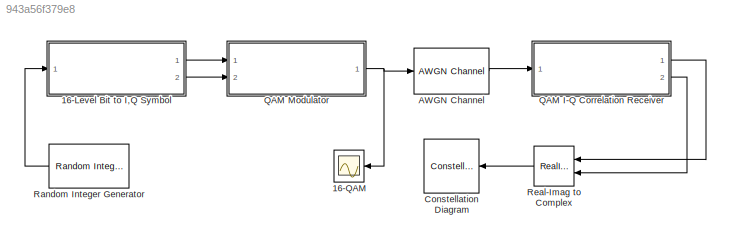
MODEL slx_943a56f379e8
KIND model
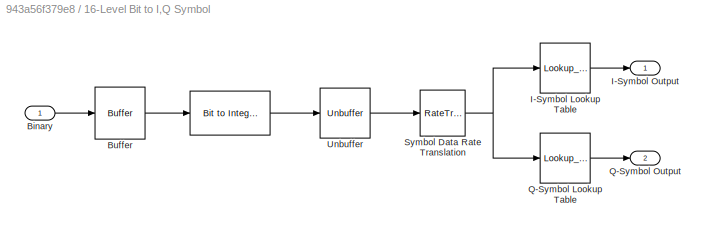
BLOCK [SubSystem] 16-Level Bit to I,Q Symbol
  Ports = [1, 2]
  RequestExecContextInheritance = off
BLOCK [Reference] 16-Level Bit to I,Q Symbol/   REF=commutil2/Bit to Integer
Converter
  Ports = [1, 1]
  SourceBlock = commutil2/Bit to Integer\nConverter
  SourceType = Bit to Integer Converter
  bitOrder = MSB first
  nbits = 4
  outDtype = Inherit via internal rule
  outDtypeSigned = Inherit via internal rule
  signedOutputValues = Unsigned
BLOCK [Inport] 16-Level Bit to I,Q Symbol/Binary
  IconDisplay = Port number
BLOCK [Buffer] 16-Level Bit to I,Q Symbol/Buffer
  N = 4
  TreatMby1Signals = One channel
BLOCK [Lookup_n-D] 16-Level Bit to I,Q Symbol/I-Symbol Lookup Table
  BreakpointsForDimension1 = [0,1,2,3,4,5,6,7,8,9,10,11,12,13,14,15]
  InternalRulePriority = Speed
  NumberOfTableDimensions = 1
  Ports = [1, 1]
  RndMeth = Simplest
  Table = [-1,-3,-1,-3,1,1,3,3,-1,-1,-3,-3,1,3,1,3]
BLOCK [Outport] 16-Level Bit to I,Q Symbol/I-Symbol Output
  IconDisplay = Port number
BLOCK [Lookup_n-D] 16-Level Bit to I,Q Symbol/Q-Symbol Lookup Table
  BreakpointsForDimension1 = [0,1,2,3,4,5,6,7,8,9,10,11,12,13,14,15]
  InternalRulePriority = Speed
  NumberOfTableDimensions = 1
  Ports = [1, 1]
  RndMeth = Simplest
  Table = [1,1,3,3,1,3,1,3,-1,-3,-1,-3,-1,-1,-3,-3]
BLOCK [Outport] 16-Level Bit to I,Q Symbol/Q-Symbol Output
  IconDisplay = Port number
  Port = 2
BLOCK [RateTransition] 16-Level Bit to I,Q Symbol/Symbol Data Rate Translation
  OutPortSampleTime = 4e-3
BLOCK [Unbuffer] 16-Level Bit to I,Q Symbol/Unbuffer
  Ports = [1, 1]
  SampleBasedProcessing = Same as frame based
BLOCK [Scope] 16-QAM
  DataFormat = StructureWithTime
  Floating = off
  MaxDataPoints = 8001
  NumInputPorts = 1
  Ports = [1]
  SampleTime = 0
  ShowLegends = off
  TimeRange = 0.005
  YMax = 10
  YMin = -10
BLOCK [Reference] AWGN Channel  REF=commchan3/AWGN
Channel
  EbNodB = 50
  EsNodB = 20
  InputProcessing = Inherited (this choice will be removed - see release notes)
  Ports = [1, 1]
  Ps = 1.25
  SNRdB = 10
  SourceBlock = commchan3/AWGN\nChannel
  SourceType = AWGN Channel
  Tsym = 4e-3
  UserDataPersistent = on
  bitsPerSym = 4
  noiseMode = Signal to noise ratio  (Eb/No)
  seed = randseed
  variance = 0
BLOCK [ConstellationDiagram] Constellation Diagram
  Ports = [1]
  ScopeSpecificationString = comm.scopes.ConstellationDiagramBlockCfg('CurrentConfiguration', extmgr.ConfigurationSet(extmgr.Configuration('Core','General UI',true),extmgr.Configuration('Core','Source UI',true),extmgr.Configuration('Sources','WiredSimulink',true),extmgr.Configuration('Sources','Simulink',false),extmgr.Configuration('Sources','File',false),extmgr.Configuration('Sources','Workspace',false),extmgr.Configuration(...<+1858ch>
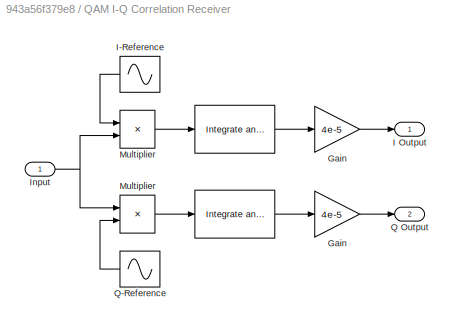
BLOCK [SubSystem] QAM I-Q Correlation Receiver
  Ports = [1, 2]
  RequestExecContextInheritance = off
BLOCK [Reference] QAM I-Q Correlation Receiver/   REF=commfilt2/Integrate
and Dump
  LockScale = off
  Ports = [1, 1]
  SourceBlock = commfilt2/Integrate\nand Dump
  SourceType = Integrate and Dump
  accumFracLength = 30
  accumMode = Inherit via internal rule
  accumWordLength = 32
  nodump = off
  obssamples = 2000
  offsetsamples = 0
  outputFracLength = 30
  outputMode = Same as accumulator
  outputWordLength = 32
  overflowMode = off
  roundingMode = Floor
BLOCK [Reference] QAM I-Q Correlation Receiver/    REF=commfilt2/Integrate
and Dump
  LockScale = off
  Ports = [1, 1]
  SourceBlock = commfilt2/Integrate\nand Dump
  SourceType = Integrate and Dump
  accumFracLength = 30
  accumMode = Inherit via internal rule
  accumWordLength = 32
  nodump = off
  obssamples = 2000
  offsetsamples = 0
  outputFracLength = 30
  outputMode = Same as accumulator
  outputWordLength = 32
  overflowMode = off
  roundingMode = Floor
BLOCK [Gain] QAM I-Q Correlation Receiver/Gain
  Gain = 4e-5
  OutDataTypeStr = Inherit: Inherit via internal rule
  ParamDataTypeStr = Inherit: Inherit via internal rule
  SaturateOnIntegerOverflow = off
BLOCK [Gain] QAM I-Q Correlation Receiver/Gain 
  Gain = 4e-5
  OutDataTypeStr = Inherit: Inherit via internal rule
  ParamDataTypeStr = Inherit: Inherit via internal rule
  SaturateOnIntegerOverflow = off
BLOCK [Outport] QAM I-Q Correlation Receiver/I Output
  IconDisplay = Port number
BLOCK [Sin] QAM I-Q Correlation Receiver/I-Reference
  Amplitude = 5
  Frequency = 40000*pi
  Phase = pi/2
  Ports = [0, 1]
  SampleTime = 2e-6
BLOCK [Inport] QAM I-Q Correlation Receiver/Input
  IconDisplay = Port number
BLOCK [Product] QAM I-Q Correlation Receiver/Multiplier
  InputSameDT = off
  OutDataTypeStr = Inherit: Inherit via internal rule
  Ports = [2, 1]
  SaturateOnIntegerOverflow = off
BLOCK [Product] QAM I-Q Correlation Receiver/Multiplier 
  InputSameDT = off
  OutDataTypeStr = Inherit: Inherit via internal rule
  Ports = [2, 1]
  SaturateOnIntegerOverflow = off
BLOCK [Outport] QAM I-Q Correlation Receiver/Q Output
  IconDisplay = Port number
  Port = 2
BLOCK [Sin] QAM I-Q Correlation Receiver/Q-Reference
  Amplitude = 5
  Frequency = 40000*pi
  Ports = [0, 1]
  SampleTime = 2e-6
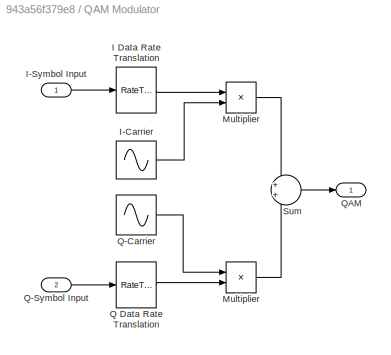
BLOCK [SubSystem] QAM Modulator
  Ports = [2, 1]
  RequestExecContextInheritance = off
BLOCK [Product] QAM Modulator/ Multiplier 
  InputSameDT = off
  OutDataTypeStr = Inherit: Inherit via internal rule
  Ports = [2, 1]
  SaturateOnIntegerOverflow = off
BLOCK [RateTransition] QAM Modulator/I Data Rate Translation
  OutPortSampleTime = 2e-6
BLOCK [Sin] QAM Modulator/I-Carrier
  Amplitude = 5
  Frequency = 40000*pi
  Phase = pi/2
  Ports = [0, 1]
  SampleTime = 2e-6
  VectorParams1D = off
BLOCK [Inport] QAM Modulator/I-Symbol Input
  IconDisplay = Port number
BLOCK [Product] QAM Modulator/Multiplier
  InputSameDT = off
  OutDataTypeStr = Inherit: Inherit via internal rule
  Ports = [2, 1]
  SaturateOnIntegerOverflow = off
BLOCK [RateTransition] QAM Modulator/Q Data Rate Translation
  OutPortSampleTime = 2e-6
BLOCK [Sin] QAM Modulator/Q-Carrier
  Amplitude = 5
  Frequency = 40000*pi
  Ports = [0, 1]
  SampleTime = 2e-6
  VectorParams1D = off
BLOCK [Inport] QAM Modulator/Q-Symbol Input
  IconDisplay = Port number
  Port = 2
BLOCK [Outport] QAM Modulator/QAM
  IconDisplay = Port number
BLOCK [Sum] QAM Modulator/Sum
  IconShape = round
  InputSameDT = off
  OutDataTypeStr = Inherit: Inherit via internal rule
  Ports = [2, 1]
  SaturateOnIntegerOverflow = off
BLOCK [Reference] Random Integer Generator  REF=commrandsrc2/Random Integer
Generator
  Ports = [0, 1]
  SourceBlock = commrandsrc2/Random Integer\nGenerator
  SourceType = Random Integer Generator
  Ts = 1e-3
  frameBased = off
  mul = 2
  orient = off
  outDataType = double
  sampPerFrame = 1
  seed = randseed
BLOCK [RealImagToComplex] Real-Imag to Complex
  Ports = [2, 1]
LINE 16-Level Bit to I,Q Symbol/ :1 -> 16-Level Bit to I,Q Symbol/Unbuffer:1
LINE 16-Level Bit to I,Q Symbol/Binary:1 -> 16-Level Bit to I,Q Symbol/Buffer:1
LINE 16-Level Bit to I,Q Symbol/Buffer:1 -> 16-Level Bit to I,Q Symbol/ :1
LINE 16-Level Bit to I,Q Symbol/I-Symbol Lookup Table:1 -> 16-Level Bit to I,Q Symbol/I-Symbol Output:1
LINE 16-Level Bit to I,Q Symbol/Q-Symbol Lookup Table:1 -> 16-Level Bit to I,Q Symbol/Q-Symbol Output:1
NET 16-Level Bit to I,Q Symbol/Symbol Data Rate Translation:1 -> 16-Level Bit to I,Q Symbol/I-Symbol Lookup Table:1, 16-Level Bit to I,Q Symbol/Q-Symbol Lookup Table:1
LINE 16-Level Bit to I,Q Symbol/Unbuffer:1 -> 16-Level Bit to I,Q Symbol/Symbol Data Rate Translation:1
LINE 16-Level Bit to I,Q Symbol:1 -> QAM Modulator:1
LINE 16-Level Bit to I,Q Symbol:2 -> QAM Modulator:2
LINE AWGN Channel:1 -> QAM I-Q Correlation Receiver:1
LINE QAM I-Q Correlation Receiver/  :1 -> QAM I-Q Correlation Receiver/Gain :1
LINE QAM I-Q Correlation Receiver/ :1 -> QAM I-Q Correlation Receiver/Gain:1
LINE QAM I-Q Correlation Receiver/Gain :1 -> QAM I-Q Correlation Receiver/Q Output:1
LINE QAM I-Q Correlation Receiver/Gain:1 -> QAM I-Q Correlation Receiver/I Output:1
LINE QAM I-Q Correlation Receiver/I-Reference:1 -> QAM I-Q Correlation Receiver/Multiplier :1
NET QAM I-Q Correlation Receiver/Input:1 -> QAM I-Q Correlation Receiver/Multiplier :2, QAM I-Q Correlation Receiver/Multiplier:1
LINE QAM I-Q Correlation Receiver/Multiplier :1 -> QAM I-Q Correlation Receiver/ :1
LINE QAM I-Q Correlation Receiver/Multiplier:1 -> QAM I-Q Correlation Receiver/  :1
LINE QAM I-Q Correlation Receiver/Q-Reference:1 -> QAM I-Q Correlation Receiver/Multiplier:2
LINE QAM I-Q Correlation Receiver:1 -> Real-Imag to Complex:1
LINE QAM I-Q Correlation Receiver:2 -> Real-Imag to Complex:2
LINE QAM Modulator/ Multiplier :1 -> QAM Modulator/Sum:2
LINE QAM Modulator/I Data Rate Translation:1 -> QAM Modulator/Multiplier:1
LINE QAM Modulator/I-Carrier:1 -> QAM Modulator/Multiplier:2
LINE QAM Modulator/I-Symbol Input:1 -> QAM Modulator/I Data Rate Translation:1
LINE QAM Modulator/Multiplier:1 -> QAM Modulator/Sum:1
LINE QAM Modulator/Q Data Rate Translation:1 -> QAM Modulator/ Multiplier :2
LINE QAM Modulator/Q-Carrier:1 -> QAM Modulator/ Multiplier :1
LINE QAM Modulator/Q-Symbol Input:1 -> QAM Modulator/Q Data Rate Translation:1
LINE QAM Modulator/Sum:1 -> QAM Modulator/QAM:1
NET QAM Modulator:1 -> 16-QAM:1, AWGN Channel:1
LINE Random Integer Generator:1 -> 16-Level Bit to I,Q Symbol:1
LINE Real-Imag to Complex:1 -> Constellation Diagram:1
note: NET lines group one-source signal fan-out (src -> all destinations, sorted); 1:1 wires keep LINE
